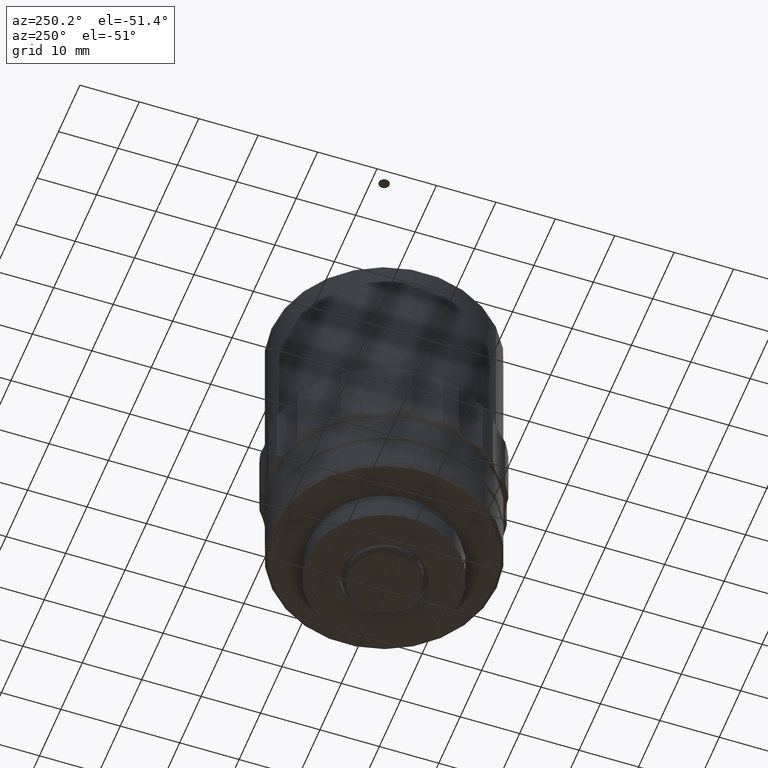
[diagram: clean part render]
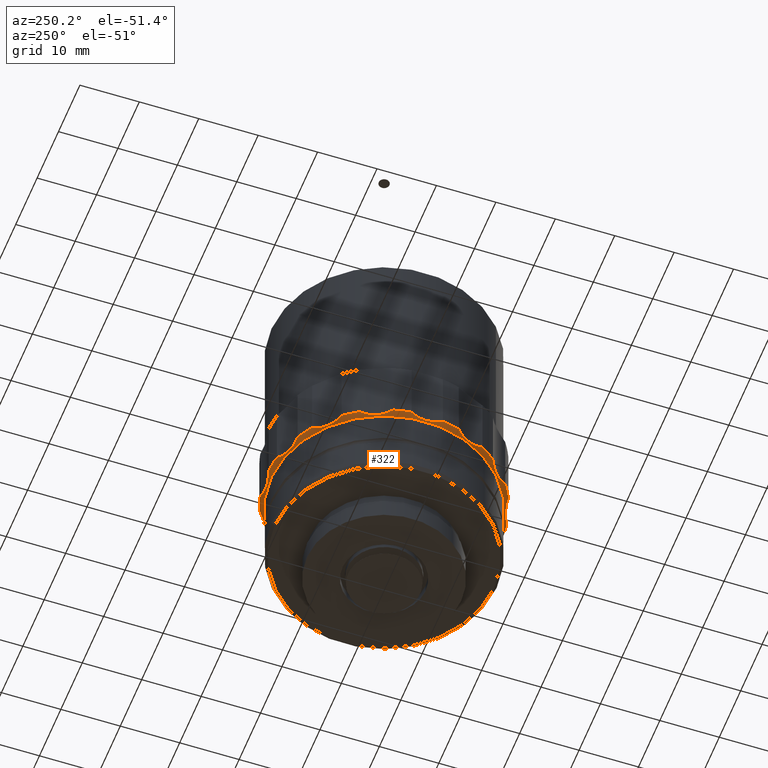
[diagram: same view with one face highlighted and labeled with its STEP entity id]
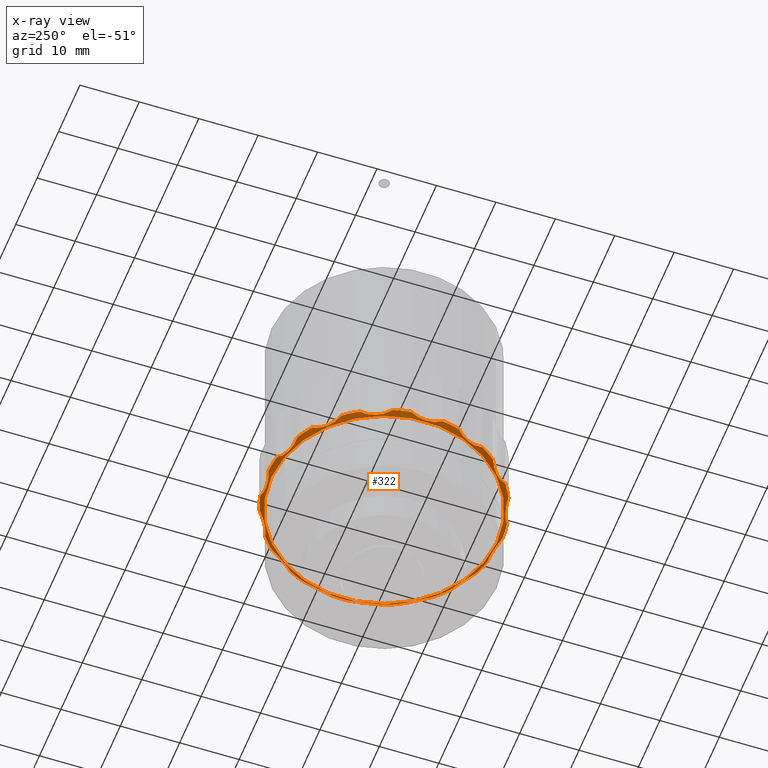
[diagram: x-ray of the same camera — body ghosted, the highlighted face saturated]
A machine part, auxiliary view. The second image highlights one B-rep face of the part: STEP entity #322.
The next image is the same camera in x-ray: the body ghosted, the highlighted face saturated — about 21% of this face is hidden behind the body in this view.
In plain terms, the highlighted conical surface has half-angle 45 deg.
Its self-contained STEP definition (entity closure, byte-faithful):
#2 = CARTESIAN_POINT ( 'NONE',  ( -18.02533309868781686, 6.792839778504467851, 16.90145279486055685 ) ) ;
#8 = EDGE_CURVE ( 'NONE', #2492, #2551, #1326, .T. ) ;
#33 = CARTESIAN_POINT ( 'NONE',  ( -11.44312226043590286, -15.72177433427505910, 17.08039831658016183 ) ) ;
#45 = EDGE_CURVE ( 'NONE', #3141, #1965, #537, .T. ) ;
#63 = CARTESIAN_POINT ( 'NONE',  ( -18.13775231235959495, 6.594909125472009137, 16.93827319148722665 ) ) ;
#65 = AXIS2_PLACEMENT_3D ( 'NONE', #376, #3106, #4155 ) ;
#82 = EDGE_CURVE ( 'NONE', #3657, #2468, #1671, .T. ) ;
#89 = ORIENTED_EDGE ( 'NONE', *, *, #635, .T. ) ;
#103 = CARTESIAN_POINT ( 'NONE',  ( 1.239389522408105689E-16, -1.567107656239846932E-15, 17.38999999999999702 ) ) ;
#107 = CARTESIAN_POINT ( 'NONE',  ( -19.37990613664927864, 1.584530164223864501, 17.07960311879671877 ) ) ;
#110 = ORIENTED_EDGE ( 'NONE', *, *, #2077, .T. ) ;
#124 = CARTESIAN_POINT ( 'NONE',  ( 1.239389522408105689E-16, -1.567107656239846735E-15, 17.39000000000000412 ) ) ;
#129 = CARTESIAN_POINT ( 'NONE',  ( -0.3571701576714307880, -19.74677010243624764, 17.39000000000000412 ) ) ;
#133 = CARTESIAN_POINT ( 'NONE',  ( -19.47803349221165092, 2.009849209956786176, 17.21754270755361560 ) ) ;
#138 = CARTESIAN_POINT ( 'NONE',  ( 1.565557411881892236, 19.13747765762765596, 16.84003581879593980 ) ) ;
#154 = CARTESIAN_POINT ( 'NONE',  ( 1.239389522408105689E-16, -1.567107656239846735E-15, 17.39000000000000412 ) ) ;
#159 = ORIENTED_EDGE ( 'NONE', *, *, #3033, .F. ) ;
#167 = CARTESIAN_POINT ( 'NONE',  ( 7.599709109754205549, 18.04666349226523181, 17.21765932491994278 ) ) ;
#174 = CARTESIAN_POINT ( 'NONE',  ( 15.68338211042843611, 11.09892327689798286, 16.85207367845032067 ) ) ;
#208 = CARTESIAN_POINT ( 'NONE',  ( 2.934487045374399639, 19.07499839027311239, 16.93816166228762299 ) ) ;
#211 = ORIENTED_EDGE ( 'NONE', *, *, #1087, .F. ) ;
#230 = CARTESIAN_POINT ( 'NONE',  ( 18.68497779835529471, -4.678097526884299917, 16.90037887722099086 ) ) ;
#237 = CIRCLE ( 'NONE', #665, 19.75000000000002842 ) ;
#247 = ORIENTED_EDGE ( 'NONE', *, *, #795, .T. ) ;
#249 = B_SPLINE_CURVE_WITH_KNOTS ( 'NONE', 3,
 ( #963, #2020, #3005, #2358, #2319, #636, #1998, #1664, #3024, #3129, #107, #133, #381 ),
 .UNSPECIFIED., .F., .F.,
 ( 4, 2, 2, 1, 2, 2, 4 ),
 ( 1.734723475976807094E-18, 0.001365790786509433943, 0.002048686179764151565, 0.002731581573018868319, 0.003414476966273585073, 0.004097372359528302262, 0.005463163146037735771 ),
 .UNSPECIFIED. ) ;
#258 = CIRCLE ( 'NONE', #3370, 19.75000000000002842 ) ;
#266 = CARTESIAN_POINT ( 'NONE',  ( -10.95601315257743380, -16.43253710784037480, 17.39000000000000412 ) ) ;
#270 = CARTESIAN_POINT ( 'NONE',  ( 19.11255761410490805, -2.679743787241646302, 16.93827319148722665 ) ) ;
#281 = ORIENTED_EDGE ( 'NONE', *, *, #3698, .T. ) ;
#283 = CARTESIAN_POINT ( 'NONE',  ( 14.13311455331821698, 13.79556352682940989, 17.39000000000000412 ) ) ;
#288 = AXIS2_PLACEMENT_3D ( 'NONE', #463, #1497, #2176 ) ;
#294 = ORIENTED_EDGE ( 'NONE', *, *, #2911, .T. ) ;
#298 = CARTESIAN_POINT ( 'NONE',  ( 7.705443807908303633, -18.18484632113145238, 17.38999999999996859 ) ) ;
#303 = DIRECTION ( 'NONE',  ( 1.734723475976809020E-18, 1.474514954580309450E-17, 1.000000000000000000 ) ) ;
#306 = CARTESIAN_POINT ( 'NONE',  ( -13.88727003771823298, 13.40203776361019194, 16.93827319148724797 ) ) ;
#311 = CARTESIAN_POINT ( 'NONE',  ( -7.930523553997814723, -17.90363311537543467, 17.21754270755360494 ) ) ;
#322 = ADVANCED_FACE ( 'NONE', ( #1089, #1454 ), #1534, .T. ) ;
#325 = CARTESIAN_POINT ( 'NONE',  ( 14.57670038725941097, -13.07490299736687511, 17.21754270755360849 ) ) ;
#340 = ORIENTED_EDGE ( 'NONE', *, *, #82, .F. ) ;
#350 = CARTESIAN_POINT ( 'NONE',  ( 9.021383310390792332, 16.96401363386068795, 16.85227143250811466 ) ) ;
#351 = CARTESIAN_POINT ( 'NONE',  ( 1.239389522408105689E-16, -1.567107656239846735E-15, 17.39000000000000412 ) ) ;
#354 = CARTESIAN_POINT ( 'NONE',  ( -19.01386575041545512, 5.341854474354366999, 17.39000000000000412 ) ) ;
#376 = CARTESIAN_POINT ( 'NONE',  ( 1.239389522408105689E-16, -1.567107656239846735E-15, 17.39000000000000412 ) ) ;
#381 = CARTESIAN_POINT ( 'NONE',  ( -19.60126078196999799, 2.419313075483756847, 17.39000000000000412 ) ) ;
#420 = CARTESIAN_POINT ( 'NONE',  ( 15.05543751800649410, -12.07279199741328668, 16.93689543420953925 ) ) ;
#424 = CARTESIAN_POINT ( 'NONE',  ( -10.95601315257743380, -16.43253710784037480, 17.39000000000000412 ) ) ;
#454 = VERTEX_POINT ( 'NONE', #1570 ) ;
#460 = VERTEX_POINT ( 'NONE', #129 ) ;
#463 = CARTESIAN_POINT ( 'NONE',  ( 1.239389522408105689E-16, -1.567107656239846735E-15, 17.39000000000000057 ) ) ;
#466 = CARTESIAN_POINT ( 'NONE',  ( 16.93941983714780264, 9.822898663394894925, 17.21754270755360849 ) ) ;
#483 = CARTESIAN_POINT ( 'NONE',  ( 10.43293423207492410, 16.23491265084611612, 16.93689543420954990 ) ) ;
#484 = CARTESIAN_POINT ( 'NONE',  ( -16.84843407818848604, -9.708218394643344240, 17.08039831658018315 ) ) ;
#491 = CARTESIAN_POINT ( 'NONE',  ( 17.27978963023650039, 9.564066621201046559, 17.39000000000000057 ) ) ;
#503 = CARTESIAN_POINT ( 'NONE',  ( 0.6704079281065126183, 19.28730248650764878, 16.93772722048152701 ) ) ;
#510 = CARTESIAN_POINT ( 'NONE',  ( 7.300081404284830988, 18.35132996517733872, 17.39000000000000412 ) ) ;
#511 = CARTESIAN_POINT ( 'NONE',  ( -18.34891170052467757, -6.434977631120449182, 17.07960311879671877 ) ) ;
#526 = CARTESIAN_POINT ( 'NONE',  ( 4.454949492966996161, 19.24099594654898837, 17.39000000000000412 ) ) ;
#534 = ORIENTED_EDGE ( 'NONE', *, *, #682, .F. ) ;
#537 = B_SPLINE_CURVE_WITH_KNOTS ( 'NONE', 3,
 ( #2945, #939, #4006, #270, #1935, #3628, #3262, #982, #230, #4324, #1956, #3666, #1253 ),
 .UNSPECIFIED., .F., .F.,
 ( 4, 2, 2, 1, 2, 2, 4 ),
 ( 4.119968255444916849E-18, 0.001365790786509433292, 0.002048686179764149830, 0.002731581573018866151, 0.003414476966273582471, 0.004097372359528298792, 0.005463163146037729699 ),
 .UNSPECIFIED. ) ;
#545 = CARTESIAN_POINT ( 'NONE',  ( 2.706255488357446559, 19.07159894039194015, 16.90131792775291331 ) ) ;
#550 = CARTESIAN_POINT ( 'NONE',  ( -18.61154834136676328, -6.086341340037593639, 17.21754270755360849 ) ) ;
#557 = CARTESIAN_POINT ( 'NONE',  ( 0.03695438783439440600, -19.58150758799052582, 17.21763694150022417 ) ) ;
#566 = AXIS2_PLACEMENT_3D ( 'NONE', #4339, #1315, #650 ) ;
#581 = CARTESIAN_POINT ( 'NONE',  ( 18.52240380076795745, 6.854418825932543591, 17.39000000000000412 ) ) ;
#595 = VERTEX_POINT ( 'NONE', #3622 ) ;
#602 = CARTESIAN_POINT ( 'NONE',  ( 18.97233027790642979, 3.326210399554675234, 16.90037887722097310 ) ) ;
#610 = CARTESIAN_POINT ( 'NONE',  ( -11.31790351918232673, 16.18541194812421224, 17.38999999999997570 ) ) ;
#626 = CARTESIAN_POINT ( 'NONE',  ( 1.239389522408104703E-16, -1.567107656239847721E-15, 17.38999999999994017 ) ) ;
#628 = CARTESIAN_POINT ( 'NONE',  ( -19.54275864521661887, -2.853609036783455011, 17.39000000000000767 ) ) ;
#635 = EDGE_CURVE ( 'NONE', #1556, #1343, #642, .T. ) ;
#636 = CARTESIAN_POINT ( 'NONE',  ( -19.20195841226432165, -0.6692596928547872581, 16.85227143250810755 ) ) ;
#642 = B_SPLINE_CURVE_WITH_KNOTS ( 'NONE', 3,
 ( #2413, #4062, #688, #3704, #3378, #1744, #1358, #1697, #3078, #420, #3057, #325, #755 ),
 .UNSPECIFIED., .F., .F.,
 ( 4, 2, 2, 1, 2, 2, 4 ),
 ( 1.734723475976807094E-18, 0.001365790786509432208, 0.002048686179764147228, 0.002731581573018862681, 0.003414476966273574665, 0.004097372359528286649, 0.005463163146037711485 ),
 .UNSPECIFIED. ) ;
#649 = CARTESIAN_POINT ( 'NONE',  ( -13.34597495332179662, 13.82201388901473749, 16.85227143250812176 ) ) ;
#650 = DIRECTION ( 'NONE',  ( -0.01109414005692111078, 0.9999384581344979983, 0.000000000000000000 ) ) ;
#661 = CARTESIAN_POINT ( 'NONE',  ( 9.398762383045086821, -16.75762029630791261, 16.85207367845031712 ) ) ;
#665 = AXIS2_PLACEMENT_3D ( 'NONE', #154, #2165, #2420 ) ;
#673 = DIRECTION ( 'NONE',  ( 1.734723475976809020E-18, 1.474514954580309450E-17, 1.000000000000000000 ) ) ;
#682 = EDGE_CURVE ( 'NONE', #3742, #3687, #3395, .T. ) ;
#688 = CARTESIAN_POINT ( 'NONE',  ( 16.83178079434280860, -9.737062728376930210, 17.08039831658017960 ) ) ;
#702 = CARTESIAN_POINT ( 'NONE',  ( -17.81407432618397735, 7.198740952694516082, 16.85227143250810045 ) ) ;
#711 = CARTESIAN_POINT ( 'NONE',  ( 11.47959721970431879, 15.86354721504115339, 17.21754270755360849 ) ) ;
#716 = CARTESIAN_POINT ( 'NONE',  ( -13.39384019884065147, -13.84261667908169002, 16.90037887722095888 ) ) ;
#723 = B_SPLINE_CURVE_WITH_KNOTS ( 'NONE', 3,
 ( #4242, #4172, #484, #1221, #1240, #2242, #2522, #3885, #3571, #866, #511, #550, #1921 ),
 .UNSPECIFIED., .F., .F.,
 ( 4, 2, 2, 1, 2, 2, 4 ),
 ( 0.000000000000000000, 0.001365790786509424835, 0.002048686179764139421, 0.002731581573018854441, 0.003414476966273569027, 0.004097372359528284047, 0.005463163146037718423 ),
 .UNSPECIFIED. ) ;
#742 = AXIS2_PLACEMENT_3D ( 'NONE', #1641, #1317, #2666 ) ;
#749 = CARTESIAN_POINT ( 'NONE',  ( 1.239389522408105935E-16, -1.567107656239846735E-15, 17.39000000000000767 ) ) ;
#755 = CARTESIAN_POINT ( 'NONE',  ( 14.43571653734126059, -13.47859740676058493, 17.39000000000000412 ) ) ;
#765 = CARTESIAN_POINT ( 'NONE',  ( 1.239389522408105689E-16, -1.567107656239846735E-15, 17.39000000000000412 ) ) ;
#795 = EDGE_CURVE ( 'NONE', #3657, #595, #3580, .T. ) ;
#833 = CARTESIAN_POINT ( 'NONE',  ( -3.325101068948173921, -19.46808164358471060, 17.39000000000000412 ) ) ;
#837 = CARTESIAN_POINT ( 'NONE',  ( -0.3982429253558416593, 19.57779649652491116, 17.21795548617062011 ) ) ;
#850 = EDGE_CURVE ( 'NONE', #2040, #861, #1851, .T. ) ;
#860 = CARTESIAN_POINT ( 'NONE',  ( 0.8900549028268348595, 19.24230407501013929, 16.90156123985718750 ) ) ;
#861 = VERTEX_POINT ( 'NONE', #2809 ) ;
#866 = CARTESIAN_POINT ( 'NONE',  ( -17.98306332336866120, -7.001995356976236984, 16.93689543420954635 ) ) ;
#869 = ORIENTED_EDGE ( 'NONE', *, *, #942, .T. ) ;
#900 = VERTEX_POINT ( 'NONE', #3009 ) ;
#902 = CARTESIAN_POINT ( 'NONE',  ( -3.681524911685053247, -19.23236896694167797, 17.21765932491994278 ) ) ;
#908 = B_SPLINE_CURVE_WITH_KNOTS ( 'NONE', 3,
 ( #1648, #1323, #2989, #2673, #1690, #1981, #4368, #661, #2023, #3347, #3970, #2652, #298 ),
 .UNSPECIFIED., .F., .F.,
 ( 4, 2, 2, 1, 2, 2, 4 ),
 ( 1.734723475976807094E-18, 0.001365790786509424619, 0.002048686179764133350, 0.002731581573018842732, 0.003414476966273551246, 0.004097372359528260628, 0.005463163146037666382 ),
 .UNSPECIFIED. ) ;
#915 = CIRCLE ( 'NONE', #2120, 19.75000000000002842 ) ;
#939 = CARTESIAN_POINT ( 'NONE',  ( 19.51183617892485955, -1.651027159903533992, 17.21765932491994278 ) ) ;
#942 = EDGE_CURVE ( 'NONE', #3928, #2193, #908, .T. ) ;
#954 = CARTESIAN_POINT ( 'NONE',  ( 19.47026287495037522, 2.083781694614856850, 17.21754270755361560 ) ) ;
#957 = CARTESIAN_POINT ( 'NONE',  ( -15.19730273181991365, 12.61366281765215014, 17.39000000000000057 ) ) ;
#963 = CARTESIAN_POINT ( 'NONE',  ( -19.54275864521661887, -2.853609036783455011, 17.39000000000000767 ) ) ;
#982 = CARTESIAN_POINT ( 'NONE',  ( 18.74233838290597376, -4.228394999148479272, 16.85207367845031712 ) ) ;
#1031 = DIRECTION ( 'NONE',  ( 1.734723475976809020E-18, 1.474514954580309450E-17, 1.000000000000000000 ) ) ;
#1033 = B_SPLINE_CURVE_WITH_KNOTS ( 'NONE', 3,
 ( #1049, #2338, #2080, #3670, #3341, #3407, #3594, #1751, #2356, #3085, #1684, #2817, #2795 ),
 .UNSPECIFIED., .F., .F.,
 ( 4, 2, 2, 1, 2, 2, 4 ),
 ( 4.347204570675246182E-17, 0.001365790786509483599, 0.002048686179764202305, 0.002731581573018921228, 0.003414476966273639717, 0.004097372359528359508, 0.005463163146037801690 ),
 .UNSPECIFIED. ) ;
#1049 = CARTESIAN_POINT ( 'NONE',  ( -8.752988007731730136, 17.70445426824862167, 17.38999999999998991 ) ) ;
#1075 = VERTEX_POINT ( 'NONE', #2427 ) ;
#1076 = EDGE_CURVE ( 'NONE', #2492, #460, #258, .T. ) ;
#1087 = EDGE_CURVE ( 'NONE', #1997, #900, #2044, .T. ) ;
#1089 = FACE_BOUND ( 'NONE', #3678, .T. ) ;
#1094 = CARTESIAN_POINT ( 'NONE',  ( -17.30403503660081910, 8.460695198868851463, 16.90037887722098020 ) ) ;
#1099 = B_SPLINE_CURVE_WITH_KNOTS ( 'NONE', 3,
 ( #1853, #837, #1936, #503, #860, #1555, #138, #2218, #2196, #545, #208, #4278, #3200, #526 ),
 .UNSPECIFIED., .F., .F.,
 ( 4, 2, 2, 2, 2, 2, 4 ),
 ( -0.0006452757176392628522, 0.0007171006272977449190, 0.001398288799766247720, 0.002079476972234750847, 0.002760665144703253540, 0.003441853317171755799, 0.004804229662108759451 ),
 .UNSPECIFIED. ) ;
#1101 = CARTESIAN_POINT ( 'NONE',  ( 17.48773316857807458, -9.178327114709746937, 17.39000000000000412 ) ) ;
#1105 = DIRECTION ( 'NONE',  ( 0.01109414005690778811, -0.9999384581344982204, 0.000000000000000000 ) ) ;
#1116 = ORIENTED_EDGE ( 'NONE', *, *, #3817, .T. ) ;
#1133 = DIRECTION ( 'NONE',  ( 0.01109414005691755807, -0.9999384581344981093, 0.000000000000000000 ) ) ;
#1143 = ORIENTED_EDGE ( 'NONE', *, *, #3596, .F. ) ;
#1169 = CARTESIAN_POINT ( 'NONE',  ( -5.726930027418349667, -18.31747667394310497, 16.82782790064803891 ) ) ;
#1181 = CARTESIAN_POINT ( 'NONE',  ( 1.328882886598210966, -19.21521831838521877, 16.89979706906942170 ) ) ;
#1219 = EDGE_CURVE ( 'NONE', #1540, #3687, #1099, .T. ) ;
#1221 = CARTESIAN_POINT ( 'NONE',  ( -17.03749779384424556, -9.066121234711813415, 16.93827319148723021 ) ) ;
#1226 = CARTESIAN_POINT ( 'NONE',  ( 18.57553184909828659, 5.099502142191719045, 16.90145279486054974 ) ) ;
#1233 = CARTESIAN_POINT ( 'NONE',  ( -3.325101068948173921, -19.46808164358471060, 17.39000000000000412 ) ) ;
#1240 = CARTESIAN_POINT ( 'NONE',  ( -17.10936579783808753, -8.850136019906789997, 16.90145279486056396 ) ) ;
#1253 = CARTESIAN_POINT ( 'NONE',  ( 18.66992273310027173, -6.441776551547468976, 17.39000000000000412 ) ) ;
#1263 = CIRCLE ( 'NONE', #3371, 19.75000000000002842 ) ;
#1283 = CARTESIAN_POINT ( 'NONE',  ( 1.239389522408105689E-16, -1.567107656239846735E-15, 17.39000000000000412 ) ) ;
#1290 = B_SPLINE_CURVE_WITH_KNOTS ( 'NONE', 3,
 ( #581, #4249, #2209, #2555, #1226, #3894, #2577, #2953, #602, #3034, #1633, #954, #4336 ),
 .UNSPECIFIED., .F., .F.,
 ( 4, 2, 2, 1, 2, 2, 4 ),
 ( 1.734723475976806902E-18, 0.001365790786509428088, 0.002048686179764144192, 0.002731581573018860513, 0.003414476966273576400, 0.004097372359528292721, 0.005463163146037720158 ),
 .UNSPECIFIED. ) ;
#1315 = DIRECTION ( 'NONE',  ( 1.734723475976809020E-18, 1.474514954580309450E-17, 1.000000000000000000 ) ) ;
#1316 = VERTEX_POINT ( 'NONE', #1662 ) ;
#1317 = DIRECTION ( 'NONE',  ( 1.734723475976809020E-18, 1.474514954580309450E-17, 1.000000000000000000 ) ) ;
#1318 = CARTESIAN_POINT ( 'NONE',  ( 14.43571653734126059, -13.47859740676058493, 17.39000000000000412 ) ) ;
#1323 = CARTESIAN_POINT ( 'NONE',  ( 11.82901448297371871, -15.60487289655182686, 17.21765932491993922 ) ) ;
#1326 = B_SPLINE_CURVE_WITH_KNOTS ( 'NONE', 3,
 ( #1233, #902, #2494, #1850, #3178, #2852, #1169, #2518, #3853, #3525, #2873, #311, #2276 ),
 .UNSPECIFIED., .F., .F.,
 ( 4, 2, 2, 1, 2, 2, 4 ),
 ( 2.168404344971008868E-18, 0.001365790786509425486, 0.002048686179764140289, 0.002731581573018855309, 0.003414476966273569895, 0.004097372359528285782, 0.005463163146037716689 ),
 .UNSPECIFIED. ) ;
#1343 = VERTEX_POINT ( 'NONE', #1318 ) ;
#1350 = B_SPLINE_CURVE_WITH_KNOTS ( 'NONE', 3,
 ( #2864, #3492, #4202, #2526, #3933, #1887, #1567, #2208, #1181, #2227, #1928, #557, #2913 ),
 .UNSPECIFIED., .F., .F.,
 ( 4, 2, 2, 1, 2, 2, 4 ),
 ( 7.585325114230020659E-17, 0.001364323004243033844, 0.002046484506364514445, 0.002728646008485995263, 0.003410807510607476081, 0.004092969012728956031, 0.005457292016971916800 ),
 .UNSPECIFIED. ) ;
#1358 = CARTESIAN_POINT ( 'NONE',  ( 15.65123684876965449, -11.10704570725765983, 16.82782790064804246 ) ) ;
#1371 = VERTEX_POINT ( 'NONE', #2317 ) ;
#1378 = CARTESIAN_POINT ( 'NONE',  ( 9.410200186900434360, 16.72649971475532027, 16.82782759244209814 ) ) ;
#1404 = CARTESIAN_POINT ( 'NONE',  ( -14.14522373674966893, -13.34181933410749998, 17.07960311879669035 ) ) ;
#1438 = CARTESIAN_POINT ( 'NONE',  ( -17.61850396377304762, 7.610254814640818211, 16.82782759244208748 ) ) ;
#1445 = VERTEX_POINT ( 'NONE', #610 ) ;
#1454 = FACE_OUTER_BOUND ( 'NONE', #4014, .T. ) ;
#1459 = CARTESIAN_POINT ( 'NONE',  ( -17.45364056766232608, 8.032745686440357247, 16.85207367845031001 ) ) ;
#1497 = DIRECTION ( 'NONE',  ( 1.734723475976809020E-18, 1.474514954580309450E-17, 1.000000000000000000 ) ) ;
#1500 = CARTESIAN_POINT ( 'NONE',  ( 14.78023499448843481, 12.41029970731728227, 16.93827319148723731 ) ) ;
#1534 = CONICAL_SURFACE ( 'NONE', #3983, 19.75000000000003197, 0.7853981633974482790 ) ;
#1540 = VERTEX_POINT ( 'NONE', #2479 ) ;
#1542 = CARTESIAN_POINT ( 'NONE',  ( 19.70900116030896854, -1.271917160408204239, 17.39000000000000412 ) ) ;
#1545 = CARTESIAN_POINT ( 'NONE',  ( 15.97919449419792848, 10.75538633023780832, 16.90037887722098731 ) ) ;
#1555 = CARTESIAN_POINT ( 'NONE',  ( 1.336903941538639007, 19.16744418506196013, 16.85269128175274389 ) ) ;
#1556 = VERTEX_POINT ( 'NONE', #1101 ) ;
#1560 = ORIENTED_EDGE ( 'NONE', *, *, #8, .T. ) ;
#1567 = CARTESIAN_POINT ( 'NONE',  ( 2.222128385795707040, -19.06280761800171319, 16.82785914403885741 ) ) ;
#1569 = B_SPLINE_CURVE_WITH_KNOTS ( 'NONE', 3,
 ( #957, #1699, #3037, #306, #1992, #649, #2030, #2682, #4046, #3334, #2956, #4295, #3316 ),
 .UNSPECIFIED., .F., .F.,
 ( 4, 2, 2, 1, 2, 2, 4 ),
 ( 0.000000000000000000, 0.001365790786509428088, 0.002048686179764140289, 0.002731581573018853140, 0.003414476966273565992, 0.004097372359528278843, 0.005463163146037706280 ),
 .UNSPECIFIED. ) ;
#1570 = CARTESIAN_POINT ( 'NONE',  ( -8.752988007731730136, 17.70445426824862167, 17.38999999999998991 ) ) ;
#1591 = CARTESIAN_POINT ( 'NONE',  ( -0.2113433680843472551, 19.04882762746220948, 16.68999999999999773 ) ) ;
#1592 = B_SPLINE_CURVE_WITH_KNOTS ( 'NONE', 3,
 ( #266, #1638, #33, #2749, #3082, #2396, #3733, #1748, #716, #2076, #1404, #3404, #2590 ),
 .UNSPECIFIED., .F., .F.,
 ( 4, 2, 2, 1, 2, 2, 4 ),
 ( 9.341771812940338307E-18, 0.001365790786509432208, 0.002048686179764143758, 0.002731581573018855309, 0.003414476966273566425, 0.004097372359528277976, 0.005463163146037695872 ),
 .UNSPECIFIED. ) ;
#1607 = ORIENTED_EDGE ( 'NONE', *, *, #3185, .F. ) ;
#1623 = ORIENTED_EDGE ( 'NONE', *, *, #1076, .F. ) ;
#1629 = EDGE_CURVE ( 'NONE', #2040, #1075, #1692, .T. ) ;
#1633 = CARTESIAN_POINT ( 'NONE',  ( 19.28585103560534009, 2.479404674334436010, 17.07960311879669746 ) ) ;
#1638 = CARTESIAN_POINT ( 'NONE',  ( -11.18574955227703782, -16.07223222547738573, 17.21765932491993922 ) ) ;
#1641 = CARTESIAN_POINT ( 'NONE',  ( 1.239389522408105689E-16, -1.567107656239846735E-15, 17.39000000000000412 ) ) ;
#1648 = CARTESIAN_POINT ( 'NONE',  ( 12.24267724093168397, -15.49772092839376469, 17.39000000000000412 ) ) ;
#1662 = CARTESIAN_POINT ( 'NONE',  ( -3.756219227407202155, 19.38951564933115890, 17.39000000000000412 ) ) ;
#1664 = CARTESIAN_POINT ( 'NONE',  ( -19.21190607509890924, 0.2392431603034503862, 16.85207367845031357 ) ) ;
#1669 = EDGE_CURVE ( 'NONE', #1540, #1316, #915, .T. ) ;
#1671 = CIRCLE ( 'NONE', #742, 19.75000000000002842 ) ;
#1684 = CARTESIAN_POINT ( 'NONE',  ( -4.481742607664836342, 18.92103276529359235, 17.07960311879672233 ) ) ;
#1690 = CARTESIAN_POINT ( 'NONE',  ( 10.59006976311696135, -16.09054778394443375, 16.90145279486056040 ) ) ;
#1692 = B_SPLINE_CURVE_WITH_KNOTS ( 'NONE', 3,
 ( #1754, #4134, #2733, #63, #2, #702, #1438, #1459, #1094, #2403, #2756, #3715, #3088 ),
 .UNSPECIFIED., .F., .F.,
 ( 4, 2, 2, 1, 2, 2, 4 ),
 ( 0.000000000000000000, 0.001365790786509419631, 0.002048686179764129447, 0.002731581573018839262, 0.003414476966273551246, 0.004097372359528263230, 0.005463163146037688066 ),
 .UNSPECIFIED. ) ;
#1697 = CARTESIAN_POINT ( 'NONE',  ( 15.40213490775216698, -11.48602684184468892, 16.85207367845031712 ) ) ;
#1699 = CARTESIAN_POINT ( 'NONE',  ( -14.81495764448459340, 12.80447858165524622, 17.21765932491993567 ) ) ;
#1718 = CARTESIAN_POINT ( 'NONE',  ( 10.22311081601787741, 16.32485825480546282, 16.90037887722099441 ) ) ;
#1744 = CARTESIAN_POINT ( 'NONE',  ( 15.92809165821670803, -10.74518550469259459, 16.85227143250811110 ) ) ;
#1748 = CARTESIAN_POINT ( 'NONE',  ( -13.03306667795069984, -14.11714366634641138, 16.85207367845029225 ) ) ;
#1751 = CARTESIAN_POINT ( 'NONE',  ( -5.709271704955429350, 18.34553866549495282, 16.85207367845032778 ) ) ;
#1754 = CARTESIAN_POINT ( 'NONE',  ( -19.01386575041545512, 5.341854474354366999, 17.39000000000000412 ) ) ;
#1816 = CARTESIAN_POINT ( 'NONE',  ( 18.52240380076795745, 6.854418825932543591, 17.39000000000000412 ) ) ;
#1836 = CARTESIAN_POINT ( 'NONE',  ( 14.46180326844328690, 12.99905694694800928, 17.08039831658017960 ) ) ;
#1850 = CARTESIAN_POINT ( 'NONE',  ( -4.662870146905869539, -18.72774752368349738, 16.93827319148723021 ) ) ;
#1851 = CIRCLE ( 'NONE', #2608, 19.75000000000002842 ) ;
#1853 = CARTESIAN_POINT ( 'NONE',  ( -0.7952021387069597713, 19.73398473594721381, 17.39000000000000412 ) ) ;
#1856 = CARTESIAN_POINT ( 'NONE',  ( 4.454949492966996161, 19.24099594654898837, 17.39000000000000412 ) ) ;
#1860 = DIRECTION ( 'NONE',  ( 1.734723475976809020E-18, 1.474514954580309450E-17, 1.000000000000000000 ) ) ;
#1874 = ORIENTED_EDGE ( 'NONE', *, *, #2285, .T. ) ;
#1887 = CARTESIAN_POINT ( 'NONE',  ( 2.675556098477206213, -19.02663242724701576, 16.85249124493049422 ) ) ;
#1905 = ORIENTED_EDGE ( 'NONE', *, *, #3181, .F. ) ;
#1921 = CARTESIAN_POINT ( 'NONE',  ( -18.89066603030839531, -5.762398539788285312, 17.39000000000000412 ) ) ;
#1928 = CARTESIAN_POINT ( 'NONE',  ( 0.4539987986213908089, -19.43807424944786888, 17.07840117243443601 ) ) ;
#1935 = CARTESIAN_POINT ( 'NONE',  ( 19.04374712671211967, -2.896722449411920586, 16.90145279486056040 ) ) ;
#1936 = CARTESIAN_POINT ( 'NONE',  ( 0.02208090260213785988, 19.44377595273619619, 17.07893202792962128 ) ) ;
#1942 = AXIS2_PLACEMENT_3D ( 'NONE', #3681, #303, #1988 ) ;
#1956 = CARTESIAN_POINT ( 'NONE',  ( 18.62696634441435961, -5.579213431186025751, 17.07960311879671522 ) ) ;
#1965 = VERTEX_POINT ( 'NONE', #3941 ) ;
#1981 = CARTESIAN_POINT ( 'NONE',  ( 10.18057510187346182, -16.29475394100575869, 16.85227143250810400 ) ) ;
#1988 = DIRECTION ( 'NONE',  ( 0.01109414005692999430, -0.9999384581344981093, 0.000000000000000000 ) ) ;
#1992 = CARTESIAN_POINT ( 'NONE',  ( -13.70406432634040783, 13.53713139903014273, 16.90145279486057461 ) ) ;
#1997 = VERTEX_POINT ( 'NONE', #628 ) ;
#1998 = CARTESIAN_POINT ( 'NONE',  ( -19.19067425690652229, -0.2137774653724617835, 16.82782790064804246 ) ) ;
#2004 = CIRCLE ( 'NONE', #65, 19.75000000000002842 ) ;
#2020 = CARTESIAN_POINT ( 'NONE',  ( -19.42872359272801930, -2.441790595713287715, 17.21765932491994633 ) ) ;
#2023 = CARTESIAN_POINT ( 'NONE',  ( 9.026186553832614479, -17.01590279977769171, 16.90037887722098020 ) ) ;
#2030 = CARTESIAN_POINT ( 'NONE',  ( -12.99993477030457889, 14.11840487566061242, 16.82782759244211235 ) ) ;
#2033 = DIRECTION ( 'NONE',  ( -0.01109414005692111078, 0.9999384581344981093, 0.000000000000000000 ) ) ;
#2040 = VERTEX_POINT ( 'NONE', #354 ) ;
#2044 = CIRCLE ( 'NONE', #4144, 19.75000000000002842 ) ;
#2064 = EDGE_CURVE ( 'NONE', #3256, #3256, #3246, .T. ) ;
#2071 = CARTESIAN_POINT ( 'NONE',  ( 11.89581697406162952, 15.76553324564789982, 17.39000000000000412 ) ) ;
#2076 = CARTESIAN_POINT ( 'NONE',  ( -13.58037772723382375, -13.71101186116672288, 16.93689543420952504 ) ) ;
#2077 = EDGE_CURVE ( 'NONE', #3325, #2897, #1592, .T. ) ;
#2080 = CARTESIAN_POINT ( 'NONE',  ( -7.893894835830639778, 17.77092174328618768, 17.08039831658021157 ) ) ;
#2082 = DIRECTION ( 'NONE',  ( 1.734723475976809020E-18, 1.474514954580309450E-17, 1.000000000000000000 ) ) ;
#2108 = DIRECTION ( 'NONE',  ( 0.01109414005692111078, -0.9999384581344981093, 0.000000000000000000 ) ) ;
#2115 = DIRECTION ( 'NONE',  ( 1.734723475976809020E-18, 1.474514954580309450E-17, 1.000000000000000000 ) ) ;
#2120 = AXIS2_PLACEMENT_3D ( 'NONE', #765, #1031, #2423 ) ;
#2147 = DIRECTION ( 'NONE',  ( 0.01109414005692111078, -0.9999384581344981093, 0.000000000000000000 ) ) ;
#2150 = CARTESIAN_POINT ( 'NONE',  ( 7.924321899454481510, 17.75737474175112141, 17.08039831658018670 ) ) ;
#2153 = ORIENTED_EDGE ( 'NONE', *, *, #3355, .F. ) ;
#2155 = B_SPLINE_CURVE_WITH_KNOTS ( 'NONE', 3,
 ( #510, #167, #2150, #3377, #2720, #350, #1378, #4170, #1718, #483, #3728, #711, #2071 ),
 .UNSPECIFIED., .F., .F.,
 ( 4, 2, 2, 1, 2, 2, 4 ),
 ( 6.254634441385501517E-18, 0.001365790786509426353, 0.002048686179764136386, 0.002731581573018846201, 0.003414476966273556451, 0.004097372359528266700, 0.005463163146037688933 ),
 .UNSPECIFIED. ) ;
#2156 = CARTESIAN_POINT ( 'NONE',  ( 1.239389522408105689E-16, -1.567107656239846735E-15, 17.39000000000000057 ) ) ;
#2165 = DIRECTION ( 'NONE',  ( 1.734723475976809020E-18, 1.474514954580309450E-17, 1.000000000000000000 ) ) ;
#2176 = DIRECTION ( 'NONE',  ( 0.01109414005689446717, -0.9999384581344984424, 0.000000000000000000 ) ) ;
#2178 = ORIENTED_EDGE ( 'NONE', *, *, #1219, .T. ) ;
#2193 = VERTEX_POINT ( 'NONE', #2928 ) ;
#2196 = CARTESIAN_POINT ( 'NONE',  ( 2.250571493373067167, 19.08142054909991714, 16.85234877939051401 ) ) ;
#2208 = CARTESIAN_POINT ( 'NONE',  ( 1.774149954850077648, -19.13103035282751918, 16.85179764663726232 ) ) ;
#2209 = CARTESIAN_POINT ( 'NONE',  ( 18.49870747096007406, 5.993084113292583837, 17.08039831658017604 ) ) ;
#2216 = AXIS2_PLACEMENT_3D ( 'NONE', #4100, #4081, #2108 ) ;
#2218 = CARTESIAN_POINT ( 'NONE',  ( 2.022436006150362786, 19.09452876468796134, 16.83996433542052884 ) ) ;
#2226 = CARTESIAN_POINT ( 'NONE',  ( 16.61003687628387837, 10.10931118697815911, 17.07960311879671877 ) ) ;
#2227 = CARTESIAN_POINT ( 'NONE',  ( 1.106431611564428152, -19.26563698134551572, 16.93612934979791262 ) ) ;
#2242 = CARTESIAN_POINT ( 'NONE',  ( -17.26964944454849515, -8.421539257476291951, 16.85227143250810755 ) ) ;
#2276 = CARTESIAN_POINT ( 'NONE',  ( -8.358026158200745570, -17.89429793925520684, 17.39000000000000412 ) ) ;
#2285 = EDGE_CURVE ( 'NONE', #1997, #861, #249, .T. ) ;
#2317 = CARTESIAN_POINT ( 'NONE',  ( 4.880751197097192851, -19.13741800118384973, 17.38999999999999702 ) ) ;
#2319 = CARTESIAN_POINT ( 'NONE',  ( -19.22985802326177307, -1.125995550736431206, 16.90145279486056396 ) ) ;
#2338 = CARTESIAN_POINT ( 'NONE',  ( -8.326086626648054434, 17.72325938538096324, 17.21765932491996764 ) ) ;
#2346 = CIRCLE ( 'NONE', #3191, 19.75000000000002842 ) ;
#2350 = DIRECTION ( 'NONE',  ( 0.01109414005692910613, -0.9999384581344981093, 0.000000000000000000 ) ) ;
#2356 = CARTESIAN_POINT ( 'NONE',  ( -5.291137599514792456, 18.52071420596604767, 16.90037887722100507 ) ) ;
#2358 = CARTESIAN_POINT ( 'NONE',  ( -19.25205243588715831, -1.352539213328538770, 16.93827319148722665 ) ) ;
#2378 = ORIENTED_EDGE ( 'NONE', *, *, #2554, .T. ) ;
#2396 = CARTESIAN_POINT ( 'NONE',  ( -12.35126119803035039, -14.71765817719781566, 16.85227143250808624 ) ) ;
#2403 = CARTESIAN_POINT ( 'NONE',  ( -17.23651468330914227, 8.678771056058108613, 16.93689543420953925 ) ) ;
#2404 = CARTESIAN_POINT ( 'NONE',  ( 19.67592967738291776, 1.708885991131002369, 17.39000000000000412 ) ) ;
#2413 = CARTESIAN_POINT ( 'NONE',  ( 17.48773316857807458, -9.178327114709746937, 17.39000000000000412 ) ) ;
#2420 = DIRECTION ( 'NONE',  ( 0.01109414005692111078, -0.9999384581344981093, 0.000000000000000000 ) ) ;
#2423 = DIRECTION ( 'NONE',  ( 0.01109414005692111078, -0.9999384581344981093, 0.000000000000000000 ) ) ;
#2427 = CARTESIAN_POINT ( 'NONE',  ( -16.92261947256523058, 10.18270348123511937, 17.39000000000000412 ) ) ;
#2448 = DIRECTION ( 'NONE',  ( 0.01109414005691666989, -0.9999384581344981093, 0.000000000000000000 ) ) ;
#2456 = CARTESIAN_POINT ( 'NONE',  ( 14.89543836136629373, 12.21397648588783191, 16.90145279486056396 ) ) ;
#2468 = VERTEX_POINT ( 'NONE', #3561 ) ;
#2479 = CARTESIAN_POINT ( 'NONE',  ( -0.7952021387069597713, 19.73398473594721381, 17.39000000000000412 ) ) ;
#2492 = VERTEX_POINT ( 'NONE', #833 ) ;
#2494 = CARTESIAN_POINT ( 'NONE',  ( -4.059190646351832576, -19.01689266367468534, 17.08039831658018315 ) ) ;
#2518 = CARTESIAN_POINT ( 'NONE',  ( -6.164339238126461673, -18.19767826085154638, 16.85207367845031712 ) ) ;
#2522 = CARTESIAN_POINT ( 'NONE',  ( -17.44460172648025775, -8.000845634664662143, 16.82782759244208748 ) ) ;
#2526 = CARTESIAN_POINT ( 'NONE',  ( 3.359312666125878533, -19.00522205597213699, 16.93860126891586049 ) ) ;
#2529 = EDGE_CURVE ( 'NONE', #454, #1445, #1263, .T. ) ;
#2551 = VERTEX_POINT ( 'NONE', #4001 ) ;
#2554 = EDGE_CURVE ( 'NONE', #4009, #1445, #1569, .T. ) ;
#2555 = CARTESIAN_POINT ( 'NONE',  ( 18.55014018462392400, 5.325709760073294774, 16.93827319148721244 ) ) ;
#2577 = CARTESIAN_POINT ( 'NONE',  ( 18.72686514657274870, 4.199071447531440349, 16.82782790064802825 ) ) ;
#2590 = CARTESIAN_POINT ( 'NONE',  ( -14.91370350569320813, -12.94773909778365173, 17.39000000000000412 ) ) ;
#2608 = AXIS2_PLACEMENT_3D ( 'NONE', #124, #3554, #1105 ) ;
#2620 = DIRECTION ( 'NONE',  ( 0.01109414005692111078, -0.9999384581344981093, 0.000000000000000000 ) ) ;
#2652 = CARTESIAN_POINT ( 'NONE',  ( 7.998436272507264633, -17.87339642499772907, 17.21754270755361915 ) ) ;
#2666 = DIRECTION ( 'NONE',  ( 0.01109414005692111078, -0.9999384581344981093, 0.000000000000000000 ) ) ;
#2672 = ORIENTED_EDGE ( 'NONE', *, *, #3575, .T. ) ;
#2673 = CARTESIAN_POINT ( 'NONE',  ( 10.79735953630079592, -15.99649687780402907, 16.93827319148722665 ) ) ;
#2682 = CARTESIAN_POINT ( 'NONE',  ( -12.67748204473017637, 14.43731350818837988, 16.85207367845032422 ) ) ;
#2696 = AXIS2_PLACEMENT_3D ( 'NONE', #103, #2115, #1133 ) ;
#2720 = CARTESIAN_POINT ( 'NONE',  ( 8.639788260144735332, 17.21654333468099907, 16.90145279486056396 ) ) ;
#2733 = CARTESIAN_POINT ( 'NONE',  ( -18.48841517551923630, 6.024760541530624458, 17.08039831658017960 ) ) ;
#2749 = CARTESIAN_POINT ( 'NONE',  ( -11.87700500243729707, -15.21208853148766060, 16.93827319148720534 ) ) ;
#2756 = CARTESIAN_POINT ( 'NONE',  ( -17.05993874082727046, 9.330058299168999980, 17.07960311879670101 ) ) ;
#2765 = ORIENTED_EDGE ( 'NONE', *, *, #3348, .F. ) ;
#2795 = CARTESIAN_POINT ( 'NONE',  ( -3.756219227407202155, 19.38951564933115890, 17.39000000000000412 ) ) ;
#2803 = VERTEX_POINT ( 'NONE', #1816 ) ;
#2809 = CARTESIAN_POINT ( 'NONE',  ( -19.60126078196999799, 2.419313075483756847, 17.39000000000000412 ) ) ;
#2817 = CARTESIAN_POINT ( 'NONE',  ( -4.107563178197939813, 19.14578823939079300, 17.21754270755360494 ) ) ;
#2826 = DIRECTION ( 'NONE',  ( 1.734723475976809020E-18, 1.474514954580309450E-17, 1.000000000000000000 ) ) ;
#2829 = ORIENTED_EDGE ( 'NONE', *, *, #4039, .F. ) ;
#2852 = CARTESIAN_POINT ( 'NONE',  ( -5.297227682687382533, -18.46896029235482217, 16.85227143250811110 ) ) ;
#2864 = CARTESIAN_POINT ( 'NONE',  ( 4.880751197097192851, -19.13741800118384973, 17.38999999999999702 ) ) ;
#2873 = CARTESIAN_POINT ( 'NONE',  ( -7.495698083567247316, -17.94173926760385029, 17.07960311879671522 ) ) ;
#2875 = ORIENTED_EDGE ( 'NONE', *, *, #1669, .F. ) ;
#2897 = VERTEX_POINT ( 'NONE', #3914 ) ;
#2904 = ORIENTED_EDGE ( 'NONE', *, *, #3228, .F. ) ;
#2911 = EDGE_CURVE ( 'NONE', #1371, #460, #1350, .T. ) ;
#2913 = CARTESIAN_POINT ( 'NONE',  ( -0.3571701576714307880, -19.74677010243624764, 17.39000000000000412 ) ) ;
#2919 = CIRCLE ( 'NONE', #2696, 19.75000000000002842 ) ;
#2928 = CARTESIAN_POINT ( 'NONE',  ( 7.705443807908303633, -18.18484632113145238, 17.38999999999996859 ) ) ;
#2945 = CARTESIAN_POINT ( 'NONE',  ( 19.70900116030896854, -1.271917160408204239, 17.39000000000000412 ) ) ;
#2953 = CARTESIAN_POINT ( 'NONE',  ( 18.84182128285645064, 3.760364752663138965, 16.85207367845030291 ) ) ;
#2956 = CARTESIAN_POINT ( 'NONE',  ( -11.79015295203826952, 15.46233459326938586, 17.07960311879671877 ) ) ;
#2989 = CARTESIAN_POINT ( 'NONE',  ( 11.41617668114930773, -15.74135144356853289, 17.08039831658017960 ) ) ;
#2990 = DIRECTION ( 'NONE',  ( 0.01109414005692111078, -0.9999384581344981093, 0.000000000000000000 ) ) ;
#3005 = CARTESIAN_POINT ( 'NONE',  ( -19.34049858060386740, -2.016023298182460621, 17.08039831658019381 ) ) ;
#3009 = CARTESIAN_POINT ( 'NONE',  ( -18.89066603030839531, -5.762398539788285312, 17.39000000000000412 ) ) ;
#3024 = CARTESIAN_POINT ( 'NONE',  ( -19.24929736985055229, 0.6910445449723976452, 16.90037887722098731 ) ) ;
#3033 = EDGE_CURVE ( 'NONE', #1371, #2193, #4320, .T. ) ;
#3034 = CARTESIAN_POINT ( 'NONE',  ( 19.04588693736414839, 3.110095857131250696, 16.93689543420952504 ) ) ;
#3037 = CARTESIAN_POINT ( 'NONE',  ( -14.43951682460841823, 13.02380855038208374, 17.08039831658019736 ) ) ;
#3050 = AXIS2_PLACEMENT_3D ( 'NONE', #351, #3444, #2350 ) ;
#3051 = AXIS2_PLACEMENT_3D ( 'NONE', #2156, #1860, #3486 ) ;
#3057 = CARTESIAN_POINT ( 'NONE',  ( 14.74730995159731606, -12.67313484889160158, 17.07960311879672233 ) ) ;
#3078 = CARTESIAN_POINT ( 'NONE',  ( 15.16682290977419711, -11.87351989174313083, 16.90037887722098731 ) ) ;
#3082 = CARTESIAN_POINT ( 'NONE',  ( -12.03050879225952841, -15.04400757027356939, 16.90145279486053909 ) ) ;
#3085 = CARTESIAN_POINT ( 'NONE',  ( -5.083895719743428465, 18.61645803535621724, 16.93689543420956056 ) ) ;
#3088 = CARTESIAN_POINT ( 'NONE',  ( -16.92261947256523058, 10.18270348123511937, 17.39000000000000412 ) ) ;
#3091 = CARTESIAN_POINT ( 'NONE',  ( 1.239389522408105689E-16, -1.567107656239846735E-15, 17.39000000000000412 ) ) ;
#3106 = DIRECTION ( 'NONE',  ( 1.734723475976809020E-18, 1.474514954580309450E-17, 1.000000000000000000 ) ) ;
#3127 = CARTESIAN_POINT ( 'NONE',  ( 1.239389522408105935E-16, -1.567107656239846735E-15, 17.39000000000000767 ) ) ;
#3129 = CARTESIAN_POINT ( 'NONE',  ( -19.27631389989154442, 0.9177297555663087580, 16.93689543420953569 ) ) ;
#3141 = VERTEX_POINT ( 'NONE', #1542 ) ;
#3144 = CARTESIAN_POINT ( 'NONE',  ( 14.28291906418362522, 13.39536728730944937, 17.21765932491994278 ) ) ;
#3178 = CARTESIAN_POINT ( 'NONE',  ( -4.871467522758049284, -18.63663354122188665, 16.90145279486056396 ) ) ;
#3181 = EDGE_CURVE ( 'NONE', #4009, #1075, #4173, .T. ) ;
#3185 = EDGE_CURVE ( 'NONE', #3632, #2897, #3605, .T. ) ;
#3188 = CARTESIAN_POINT ( 'NONE',  ( 16.13429354983004771, 10.58787406042008783, 16.93689543420954280 ) ) ;
#3191 = AXIS2_PLACEMENT_3D ( 'NONE', #1283, #2082, #2990 ) ;
#3200 = CARTESIAN_POINT ( 'NONE',  ( 4.035902003320264164, 19.16144443693549704, 17.21797540883311939 ) ) ;
#3204 = ORIENTED_EDGE ( 'NONE', *, *, #850, .F. ) ;
#3228 = EDGE_CURVE ( 'NONE', #1556, #1965, #2346, .T. ) ;
#3246 = CIRCLE ( 'NONE', #566, 19.05000000000002203 ) ;
#3256 = VERTEX_POINT ( 'NONE', #1591 ) ;
#3262 = CARTESIAN_POINT ( 'NONE',  ( 18.81575881514146431, -3.780859617841142217, 16.82782790064803891 ) ) ;
#3316 = CARTESIAN_POINT ( 'NONE',  ( -11.31790351918232673, 16.18541194812421224, 17.38999999999997570 ) ) ;
#3325 = VERTEX_POINT ( 'NONE', #424 ) ;
#3334 = CARTESIAN_POINT ( 'NONE',  ( -12.21636548916257325, 14.93917399679788360, 16.93689543420956056 ) ) ;
#3341 = CARTESIAN_POINT ( 'NONE',  ( -7.013238334452768008, 17.94073001968554948, 16.90145279486058527 ) ) ;
#3347 = CARTESIAN_POINT ( 'NONE',  ( 8.843379667816563483, -17.15264240641225513, 16.93689543420952504 ) ) ;
#3348 = EDGE_CURVE ( 'NONE', #2803, #595, #2919, .T. ) ;
#3352 = CARTESIAN_POINT ( 'NONE',  ( -16.69253102987125459, -10.55565762123739226, 17.39000000000000412 ) ) ;
#3355 = EDGE_CURVE ( 'NONE', #3928, #1343, #2004, .T. ) ;
#3370 = AXIS2_PLACEMENT_3D ( 'NONE', #3091, #4095, #2448 ) ;
#3371 = AXIS2_PLACEMENT_3D ( 'NONE', #626, #3706, #2620 ) ;
#3373 = CARTESIAN_POINT ( 'NONE',  ( 7.300081404284830988, 18.35132996517733872, 17.39000000000000412 ) ) ;
#3377 = CARTESIAN_POINT ( 'NONE',  ( 8.454692899586287780, 17.34903609113269951, 16.93827319148723021 ) ) ;
#3378 = CARTESIAN_POINT ( 'NONE',  ( 16.21912551910606837, -10.39207741361492054, 16.90145279486056040 ) ) ;
#3395 = CIRCLE ( 'NONE', #3050, 19.75000000000002487 ) ;
#3404 = CARTESIAN_POINT ( 'NONE',  ( -14.52695740169090044, -13.13014817966423742, 17.21754270755361560 ) ) ;
#3407 = CARTESIAN_POINT ( 'NONE',  ( -6.570235266654110617, 18.05533505487017720, 16.85227143250812176 ) ) ;
#3444 = DIRECTION ( 'NONE',  ( 1.734723475976809020E-18, 1.474514954580309450E-17, 1.000000000000000000 ) ) ;
#3481 = ORIENTED_EDGE ( 'NONE', *, *, #2064, .T. ) ;
#3486 = DIRECTION ( 'NONE',  ( 0.01109414005692111078, -0.9999384581344981093, 0.000000000000000000 ) ) ;
#3492 = CARTESIAN_POINT ( 'NONE',  ( 4.459853727017004665, -19.06715203771399558, 17.21789848379105337 ) ) ;
#3497 = CARTESIAN_POINT ( 'NONE',  ( -15.19730273181991365, 12.61366281765215014, 17.39000000000000057 ) ) ;
#3525 = CARTESIAN_POINT ( 'NONE',  ( -6.829521448201759881, -18.04926985392917160, 16.93689543420954635 ) ) ;
#3554 = DIRECTION ( 'NONE',  ( 1.734723475976809020E-18, 1.474514954580309450E-17, 1.000000000000000000 ) ) ;
#3561 = CARTESIAN_POINT ( 'NONE',  ( 11.89581697406162952, 15.76553324564789982, 17.39000000000000412 ) ) ;
#3565 = ORIENTED_EDGE ( 'NONE', *, *, #45, .T. ) ;
#3571 = CARTESIAN_POINT ( 'NONE',  ( -17.86618131347655236, -7.198093988692620293, 16.90037887722098375 ) ) ;
#3575 = EDGE_CURVE ( 'NONE', #2803, #4283, #1290, .T. ) ;
#3580 = B_SPLINE_CURVE_WITH_KNOTS ( 'NONE', 3,
 ( #4201, #3144, #1836, #1500, #2456, #3863, #3819, #174, #1545, #3188, #2226, #466, #491 ),
 .UNSPECIFIED., .F., .F.,
 ( 4, 2, 2, 1, 2, 2, 4 ),
 ( 3.878959614448864246E-18, 0.001365790786509429823, 0.002048686179764142891, 0.002731581573018855742, 0.003414476966273568594, 0.004097372359528281445, 0.005463163146037707148 ),
 .UNSPECIFIED. ) ;
#3586 = ORIENTED_EDGE ( 'NONE', *, *, #4003, .T. ) ;
#3594 = CARTESIAN_POINT ( 'NONE',  ( -6.133558754350644016, 18.18535447199694488, 16.82782759244210169 ) ) ;
#3596 = EDGE_CURVE ( 'NONE', #3325, #2551, #3816, .T. ) ;
#3605 = CIRCLE ( 'NONE', #288, 19.75000000000002842 ) ;
#3622 = CARTESIAN_POINT ( 'NONE',  ( 17.27978963023650039, 9.564066621201046559, 17.39000000000000057 ) ) ;
#3628 = CARTESIAN_POINT ( 'NONE',  ( 18.92149646468429225, -3.337676877672309139, 16.85227143250810755 ) ) ;
#3632 = VERTEX_POINT ( 'NONE', #3352 ) ;
#3657 = VERTEX_POINT ( 'NONE', #283 ) ;
#3666 = CARTESIAN_POINT ( 'NONE',  ( 18.63452057988870436, -6.015640059726518274, 17.21754270755360849 ) ) ;
#3670 = CARTESIAN_POINT ( 'NONE',  ( -7.235552611667780631, 17.89183231872935309, 16.93827319148724797 ) ) ;
#3678 = EDGE_LOOP ( 'NONE', ( #3481 ) ) ;
#3681 = CARTESIAN_POINT ( 'NONE',  ( 1.239389522408105689E-16, -1.567107656239846735E-15, 17.39000000000000057 ) ) ;
#3687 = VERTEX_POINT ( 'NONE', #1856 ) ;
#3698 = EDGE_CURVE ( 'NONE', #3742, #2468, #2155, .T. ) ;
#3699 = ORIENTED_EDGE ( 'NONE', *, *, #2529, .F. ) ;
#3704 = CARTESIAN_POINT ( 'NONE',  ( 16.37024019997214097, -10.22184528903444978, 16.93827319148722665 ) ) ;
#3706 = DIRECTION ( 'NONE',  ( 1.734723475976809020E-18, 1.474514954580309450E-17, 1.000000000000000000 ) ) ;
#3715 = CARTESIAN_POINT ( 'NONE',  ( -16.97658969987415745, 9.758518572642532973, 17.21754270755361560 ) ) ;
#3728 = CARTESIAN_POINT ( 'NONE',  ( 11.06219644360507637, 15.99122595518439205, 17.07960311879671167 ) ) ;
#3733 = CARTESIAN_POINT ( 'NONE',  ( -12.68219957239912077, -14.40449493287041705, 16.82782759244207327 ) ) ;
#3742 = VERTEX_POINT ( 'NONE', #3373 ) ;
#3816 = CIRCLE ( 'NONE', #1942, 19.75000000000002487 ) ;
#3817 = EDGE_CURVE ( 'NONE', #3632, #900, #723, .T. ) ;
#3819 = CARTESIAN_POINT ( 'NONE',  ( 15.39992636593269459, 11.45294491225931566, 16.82782790064804246 ) ) ;
#3853 = CARTESIAN_POINT ( 'NONE',  ( -6.605582434606973585, -18.09362518943297005, 16.90037887722098731 ) ) ;
#3863 = CARTESIAN_POINT ( 'NONE',  ( 15.14132970338889272, 11.82807043503216349, 16.85227143250810400 ) ) ;
#3885 = CARTESIAN_POINT ( 'NONE',  ( -17.64825848746356485, -7.595626681706038497, 16.85207367845032067 ) ) ;
#3894 = CARTESIAN_POINT ( 'NONE',  ( 18.64320263600899708, 4.646946403340055376, 16.85227143250808624 ) ) ;
#3914 = CARTESIAN_POINT ( 'NONE',  ( -14.91370350569320813, -12.94773909778365173, 17.39000000000000412 ) ) ;
#3928 = VERTEX_POINT ( 'NONE', #4361 ) ;
#3933 = CARTESIAN_POINT ( 'NONE',  ( 3.131757735255255692, -19.00679134642628654, 16.90173672537812877 ) ) ;
#3941 = CARTESIAN_POINT ( 'NONE',  ( 18.66992273310027173, -6.441776551547468976, 17.39000000000000412 ) ) ;
#3970 = CARTESIAN_POINT ( 'NONE',  ( 8.317709693044148977, -17.57575611940808002, 17.07960311879669746 ) ) ;
#3983 = AXIS2_PLACEMENT_3D ( 'NONE', #3127, #673, #2033 ) ;
#4001 = CARTESIAN_POINT ( 'NONE',  ( -8.358026158200745570, -17.89429793925520684, 17.39000000000000412 ) ) ;
#4003 = EDGE_CURVE ( 'NONE', #454, #1316, #1033, .T. ) ;
#4006 = CARTESIAN_POINT ( 'NONE',  ( 19.33701709626637211, -2.049147409011081500, 17.08039831658019025 ) ) ;
#4009 = VERTEX_POINT ( 'NONE', #3497 ) ;
#4014 = EDGE_LOOP ( 'NONE', ( #159, #294, #1623, #1560, #1143, #110, #1607, #1116, #211, #1874, #3204, #4078, #1905, #2378, #3699, #3586, #2875, #2178, #534, #281, #340, #247, #2765, #2672, #2829, #3565, #2904, #89, #2153, #869 ) ) ;
#4039 = EDGE_CURVE ( 'NONE', #3141, #4283, #237, .T. ) ;
#4046 = CARTESIAN_POINT ( 'NONE',  ( -12.36674784329963650, 14.76741478987827705, 16.90037887722100862 ) ) ;
#4062 = CARTESIAN_POINT ( 'NONE',  ( 17.15341606687723797, -9.444467110035313695, 17.21765932491994633 ) ) ;
#4078 = ORIENTED_EDGE ( 'NONE', *, *, #1629, .T. ) ;
#4081 = DIRECTION ( 'NONE',  ( 1.734723475976809020E-18, 1.474514954580309450E-17, 1.000000000000000000 ) ) ;
#4095 = DIRECTION ( 'NONE',  ( 1.734723475976809020E-18, 1.474514954580309450E-17, 1.000000000000000000 ) ) ;
#4100 = CARTESIAN_POINT ( 'NONE',  ( 1.239389522408104456E-16, -1.567107656239847918E-15, 17.38999999999992596 ) ) ;
#4134 = CARTESIAN_POINT ( 'NONE',  ( -18.74218789592487511, 5.671687106125288480, 17.21765932491994278 ) ) ;
#4144 = AXIS2_PLACEMENT_3D ( 'NONE', #749, #2826, #2147 ) ;
#4155 = DIRECTION ( 'NONE',  ( 0.01109414005692022261, -0.9999384581344981093, 0.000000000000000000 ) ) ;
#4170 = CARTESIAN_POINT ( 'NONE',  ( 9.813143692053762024, 16.51837713600461299, 16.85207367845031712 ) ) ;
#4172 = CARTESIAN_POINT ( 'NONE',  ( -16.75585647593584326, -10.13306052058209694, 17.21765932491994278 ) ) ;
#4173 = CIRCLE ( 'NONE', #3051, 19.75000000000002842 ) ;
#4201 = CARTESIAN_POINT ( 'NONE',  ( 14.13311455331821698, 13.79556352682940989, 17.39000000000000412 ) ) ;
#4202 = CARTESIAN_POINT ( 'NONE',  ( 4.027727855845685490, -19.02392233099681107, 17.08074248429166531 ) ) ;
#4242 = CARTESIAN_POINT ( 'NONE',  ( -16.69253102987125459, -10.55565762123739226, 17.39000000000000412 ) ) ;
#4249 = CARTESIAN_POINT ( 'NONE',  ( 18.49648255616951076, 6.427890385286423758, 17.21765932491994278 ) ) ;
#4278 = CARTESIAN_POINT ( 'NONE',  ( 3.604387229688380323, 19.10851145240626892, 17.08057304119057562 ) ) ;
#4283 = VERTEX_POINT ( 'NONE', #2404 ) ;
#4295 = CARTESIAN_POINT ( 'NONE',  ( -11.53973932095270349, 15.81985142076057471, 17.21754270755361205 ) ) ;
#4320 = CIRCLE ( 'NONE', #2216, 19.75000000000002842 ) ;
#4324 = CARTESIAN_POINT ( 'NONE',  ( 18.66427344697709856, -4.905446174189419750, 16.93689543420953925 ) ) ;
#4336 = CARTESIAN_POINT ( 'NONE',  ( 19.67592967738291776, 1.708885991131002369, 17.39000000000000412 ) ) ;
#4339 = CARTESIAN_POINT ( 'NONE',  ( 1.227246458076267990E-16, -1.577429260921908619E-15, 16.68999999999999773 ) ) ;
#4361 = CARTESIAN_POINT ( 'NONE',  ( 12.24267724093168397, -15.49772092839376469, 17.39000000000000412 ) ) ;
#4368 = CARTESIAN_POINT ( 'NONE',  ( 9.780473575920986207, -16.51272227393052816, 16.82782759244207682 ) ) ;